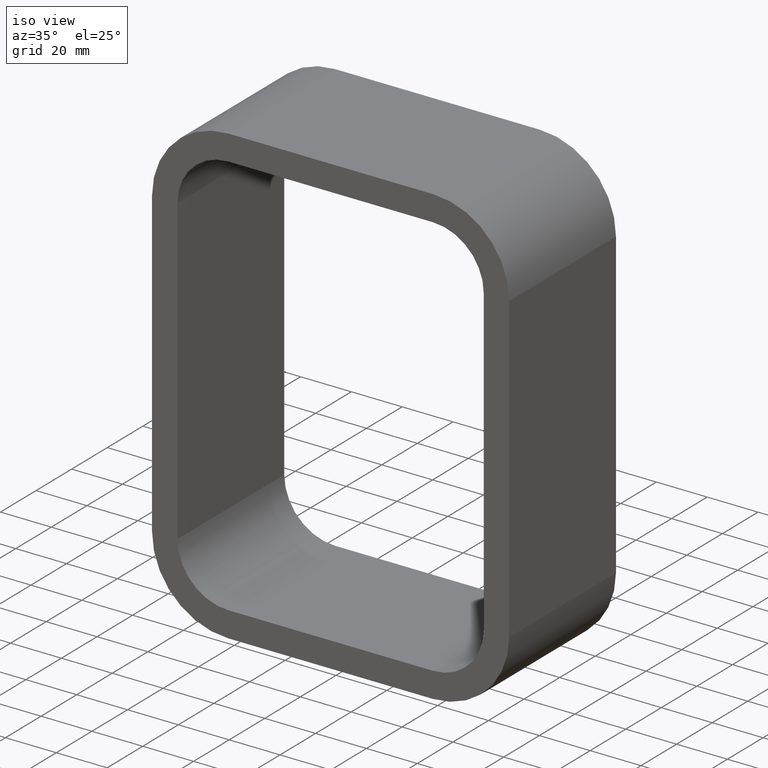
[diagram: clean part render]
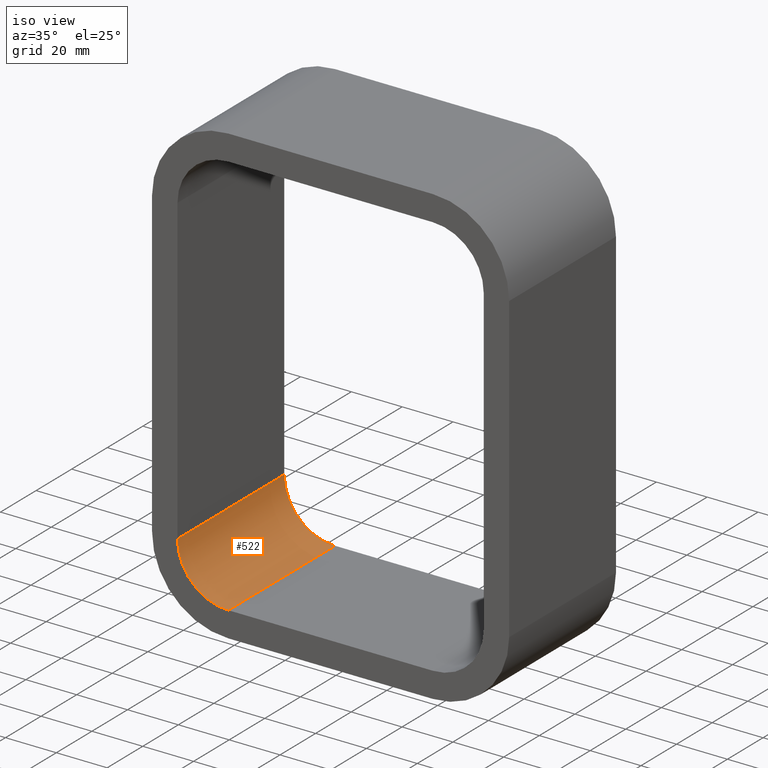
[diagram: same view with one face highlighted and labeled with its STEP entity id]
A machine part, iso view. The second image highlights one B-rep face of the part: STEP entity #522.
In plain terms, the highlighted cylindrical surface (partial cylindrical patch) has radius 20 mm, axis along (0, 1, 0).
Its self-contained STEP definition (entity closure, byte-faithful):
#194=CARTESIAN_POINT('',(-40.25,-3.0,-79.75));
#195=VERTEX_POINT('',#194);
#202=CARTESIAN_POINT('',(-60.250000000000014,-3.0,-59.75));
#203=VERTEX_POINT('',#202);
#204=CARTESIAN_POINT('',(-40.25,-3.0,-59.75));
#205=DIRECTION('',(0.0,-1.0,0.0));
#206=DIRECTION('',(-0.707106781186547,0.0,-0.707106781186547));
#207=AXIS2_PLACEMENT_3D('',#204,#205,#206);
#208=CIRCLE('',#207,19.999999999999996);
#209=EDGE_CURVE('',#203,#195,#208,.T.);
#432=CARTESIAN_POINT('',(-60.250000000000014,57.0,-59.75));
#433=VERTEX_POINT('',#432);
#434=CARTESIAN_POINT('',(-60.250000000000014,57.0,-59.75));
#435=DIRECTION('',(0.0,-1.0,0.0));
#436=VECTOR('',#435,60.0);
#437=LINE('',#434,#436);
#438=EDGE_CURVE('',#433,#203,#437,.T.);
#498=CARTESIAN_POINT('',(-40.25,0.0,-59.75));
#499=DIRECTION('',(0.0,1.0,0.0));
#500=DIRECTION('',(-0.707106781186547,0.0,-0.707106781186547));
#501=AXIS2_PLACEMENT_3D('',#498,#499,#500);
#502=CYLINDRICAL_SURFACE('',#501,20.0);
#503=ORIENTED_EDGE('',*,*,#209,.T.);
#504=CARTESIAN_POINT('',(-40.25,57.0,-79.75));
#505=VERTEX_POINT('',#504);
#506=CARTESIAN_POINT('',(-40.25,-3.0,-79.75));
#507=DIRECTION('',(0.0,1.0,0.0));
#508=VECTOR('',#507,60.0);
#509=LINE('',#506,#508);
#510=EDGE_CURVE('',#195,#505,#509,.T.);
#511=ORIENTED_EDGE('',*,*,#510,.T.);
#512=CARTESIAN_POINT('',(-40.25,57.0,-59.75));
#513=DIRECTION('',(0.0,1.0,0.0));
#514=DIRECTION('',(-0.707106781186547,0.0,-0.707106781186547));
#515=AXIS2_PLACEMENT_3D('',#512,#513,#514);
#516=CIRCLE('',#515,19.999999999999996);
#517=EDGE_CURVE('',#505,#433,#516,.T.);
#518=ORIENTED_EDGE('',*,*,#517,.T.);
#519=ORIENTED_EDGE('',*,*,#438,.T.);
#520=EDGE_LOOP('',(#503,#511,#518,#519));
#521=FACE_OUTER_BOUND('',#520,.T.);
#522=ADVANCED_FACE('',(#521),#502,.F.);